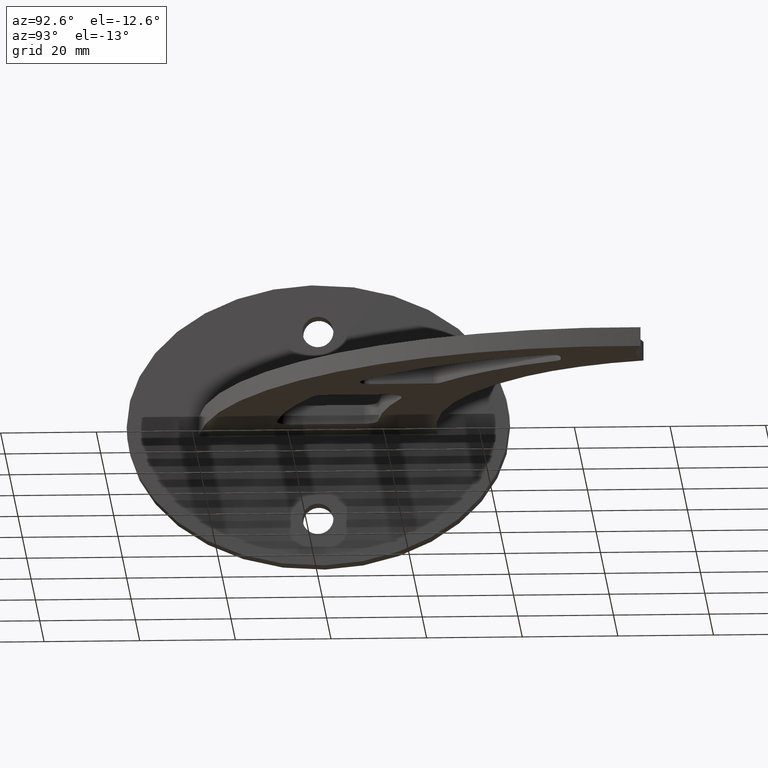
[diagram: clean part render]
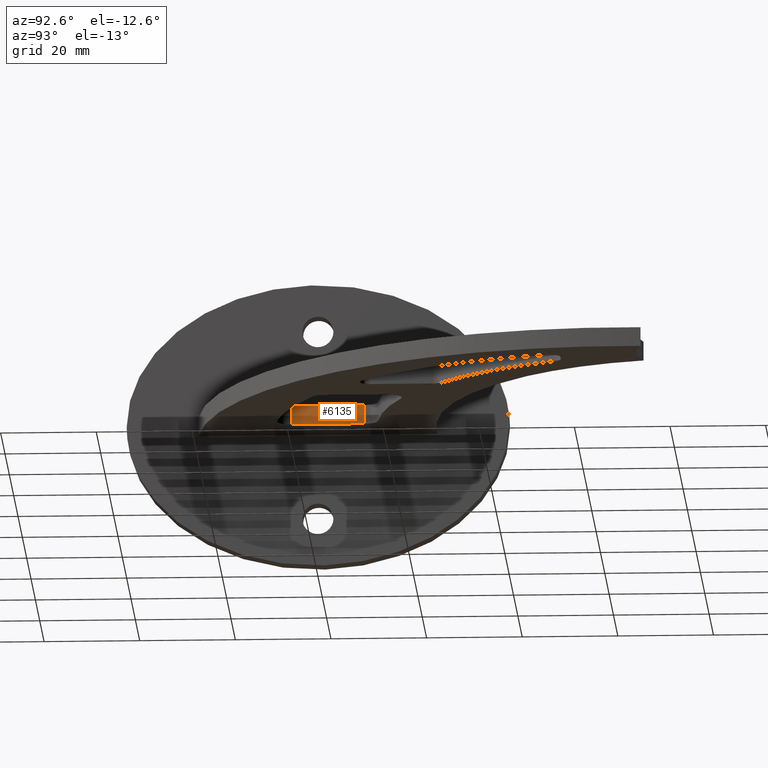
[diagram: same view with one face highlighted and labeled with its STEP entity id]
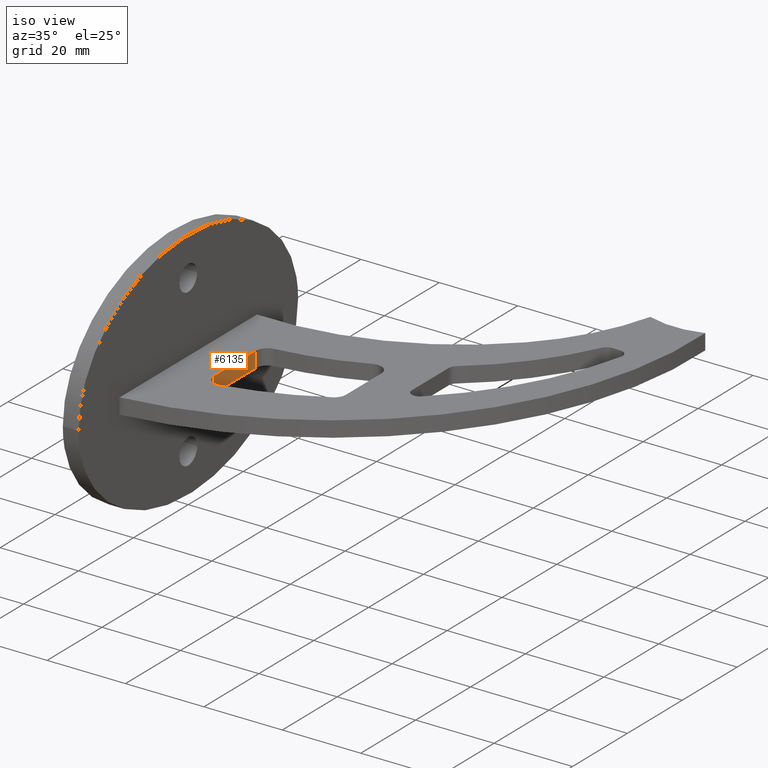
[diagram: same view with one face highlighted and labeled with its STEP entity id]
A machine part, auxiliary view. The second image highlights one B-rep face of the part: STEP entity #6135.
A second angle (iso view) of the same face is appended — the face is thin or edge-on in the first view.
In plain terms, the highlighted planar face has unit normal (-1, -0, 0).
Its self-contained STEP definition (entity closure, byte-faithful):
#224 = DIRECTION ( 'NONE',  ( -1.000000000000000000, -1.770125995894700956E-16, 0.000000000000000000 ) ) ;
#652 = EDGE_LOOP ( 'NONE', ( #8452, #9208, #5162, #11953 ) ) ;
#1025 = CARTESIAN_POINT ( 'NONE',  ( 10.09999999999999787, 10.15777023725963879, 2.000000000000000000 ) ) ;
#1066 = EDGE_CURVE ( 'NONE', #11035, #2520, #1116, .T. ) ;
#1116 = LINE ( 'NONE', #9474, #3107 ) ;
#1715 = DIRECTION ( 'NONE',  ( 0.000000000000000000, 1.000000000000000000, -0.000000000000000000 ) ) ;
#1999 = DIRECTION ( 'NONE',  ( 0.000000000000000000, 0.000000000000000000, 1.000000000000000000 ) ) ;
#2223 = VECTOR ( 'NONE', #6785, 1000.000000000000000 ) ;
#2391 = CARTESIAN_POINT ( 'NONE',  ( 10.09999999999999787, 10.15777023725963879, -2.000000000000000000 ) ) ;
#2520 = VERTEX_POINT ( 'NONE', #12568 ) ;
#2798 = CARTESIAN_POINT ( 'NONE',  ( 10.09999999999999964, 1.787827255853647886E-15, -2.000000000000000000 ) ) ;
#3107 = VECTOR ( 'NONE', #10623, 1000.000000000000000 ) ;
#4019 = VERTEX_POINT ( 'NONE', #2391 ) ;
#4791 = DIRECTION ( 'NONE',  ( 1.770125995894700956E-16, -1.000000000000000000, 0.000000000000000000 ) ) ;
#4993 = VECTOR ( 'NONE', #1999, 1000.000000000000000 ) ;
#5103 = VECTOR ( 'NONE', #1715, 1000.000000000000000 ) ;
#5162 = ORIENTED_EDGE ( 'NONE', *, *, #9539, .F. ) ;
#6017 = LINE ( 'NONE', #8647, #5103 ) ;
#6135 = ADVANCED_FACE ( 'NONE', ( #9397 ), #7719, .F. ) ;
#6785 = DIRECTION ( 'NONE',  ( -1.770125995894700956E-16, 1.000000000000000000, 0.000000000000000000 ) ) ;
#6900 = AXIS2_PLACEMENT_3D ( 'NONE', #7765, #224, #4791 ) ;
#7100 = EDGE_CURVE ( 'NONE', #4019, #9181, #10900, .T. ) ;
#7719 = PLANE ( 'NONE',  #6900 ) ;
#7765 = CARTESIAN_POINT ( 'NONE',  ( 10.09999999999999964, 1.787827255853647886E-15, 2.000000000000000000 ) ) ;
#7839 = LINE ( 'NONE', #2798, #2223 ) ;
#8452 = ORIENTED_EDGE ( 'NONE', *, *, #8530, .T. ) ;
#8530 = EDGE_CURVE ( 'NONE', #2520, #4019, #7839, .T. ) ;
#8647 = CARTESIAN_POINT ( 'NONE',  ( 10.09999999999999964, 0.000000000000000000, 2.000000000000000000 ) ) ;
#8887 = CARTESIAN_POINT ( 'NONE',  ( 10.09999999999999964, -5.099510724971154652, 2.000000000000000000 ) ) ;
#9181 = VERTEX_POINT ( 'NONE', #12537 ) ;
#9208 = ORIENTED_EDGE ( 'NONE', *, *, #7100, .T. ) ;
#9397 = FACE_OUTER_BOUND ( 'NONE', #652, .T. ) ;
#9474 = CARTESIAN_POINT ( 'NONE',  ( 10.10000000000000142, -5.099510724971154652, 2.000000000000000000 ) ) ;
#9539 = EDGE_CURVE ( 'NONE', #11035, #9181, #6017, .T. ) ;
#10623 = DIRECTION ( 'NONE',  ( 0.000000000000000000, 0.000000000000000000, -1.000000000000000000 ) ) ;
#10900 = LINE ( 'NONE', #1025, #4993 ) ;
#11035 = VERTEX_POINT ( 'NONE', #8887 ) ;
#11953 = ORIENTED_EDGE ( 'NONE', *, *, #1066, .T. ) ;
#12537 = CARTESIAN_POINT ( 'NONE',  ( 10.09999999999999964, 10.15777023725963879, 2.000000000000000000 ) ) ;
#12568 = CARTESIAN_POINT ( 'NONE',  ( 10.10000000000000142, -5.099510724971154652, -2.000000000000000000 ) ) ;